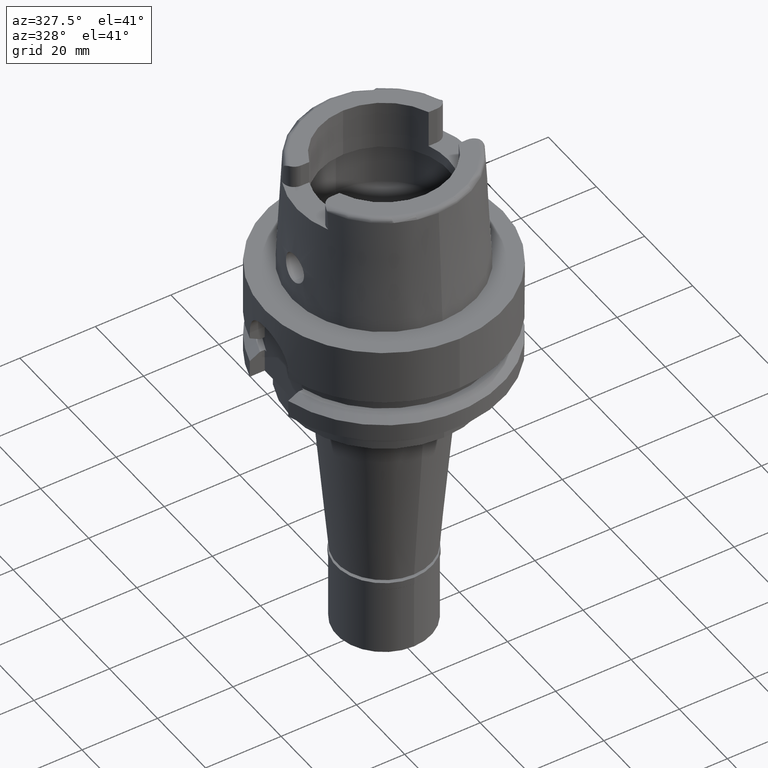
[diagram: clean part render]
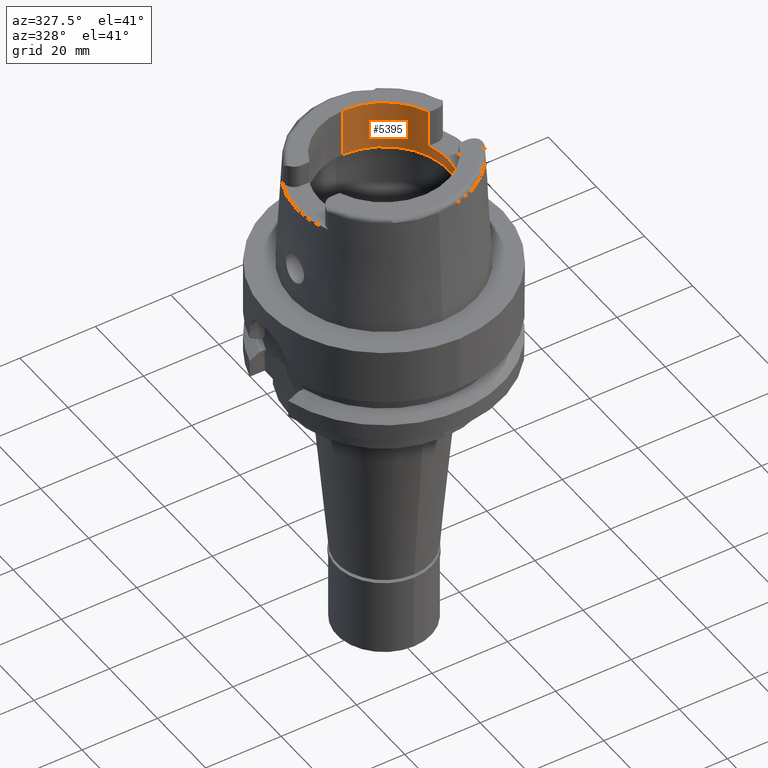
[diagram: same view with one face highlighted and labeled with its STEP entity id]
A machine part, auxiliary view. The second image highlights one B-rep face of the part: STEP entity #5395.
In plain terms, the highlighted cylindrical surface (partial cylindrical patch) has radius 17 mm, axis along (0, 0, 1).
Its self-contained STEP definition (entity closure, byte-faithful):
#2 = AXIS2_PLACEMENT_3D ( 'NONE', #2868, #3721, #4546 ) ;
#54 = DIRECTION ( 'NONE',  ( 0.0000000000000000000, -7.376457760500000442E-14, 1.000000000000000000 ) ) ;
#106 = CIRCLE ( 'NONE', #3207, 17.00000000000000000 ) ;
#108 = CARTESIAN_POINT ( 'NONE',  ( 15.80149043602999903, 6.270000000000000462, 22.00000000000000000 ) ) ;
#293 = ORIENTED_EDGE ( 'NONE', *, *, #378, .F. ) ;
#354 = AXIS2_PLACEMENT_3D ( 'NONE', #949, #501, #3861 ) ;
#378 = EDGE_CURVE ( 'NONE', #1582, #2493, #1538, .T. ) ;
#467 = CARTESIAN_POINT ( 'NONE',  ( 0.0000000000000000000, -17.00000000000000000, 32.00000000000000000 ) ) ;
#501 = DIRECTION ( 'NONE',  ( 0.0000000000000000000, 0.0000000000000000000, 1.000000000000000000 ) ) ;
#558 = LINE ( 'NONE', #5273, #2327 ) ;
#592 = DIRECTION ( 'NONE',  ( 0.0000000000000000000, 0.0000000000000000000, 1.000000000000000000 ) ) ;
#692 = DIRECTION ( 'NONE',  ( 0.0000000000000000000, -1.000000000000000000, 0.0000000000000000000 ) ) ;
#733 = VERTEX_POINT ( 'NONE', #467 ) ;
#781 = ORIENTED_EDGE ( 'NONE', *, *, #5225, .T. ) ;
#813 = EDGE_LOOP ( 'NONE', ( #3219, #4706, #4939, #781, #3858, #4849, #293, #980 ) ) ;
#879 = EDGE_CURVE ( 'NONE', #733, #2493, #106, .T. ) ;
#949 = CARTESIAN_POINT ( 'NONE',  ( 0.0000000000000000000, 0.0000000000000000000, 22.00000000000000000 ) ) ;
#980 = ORIENTED_EDGE ( 'NONE', *, *, #4949, .T. ) ;
#1349 = DIRECTION ( 'NONE',  ( 0.0000000000000000000, 1.000000000000000000, 0.0000000000000000000 ) ) ;
#1479 = DIRECTION ( 'NONE',  ( 0.0000000000000000000, 7.376457760500000442E-14, 1.000000000000000000 ) ) ;
#1538 = LINE ( 'NONE', #1845, #5271 ) ;
#1582 = VERTEX_POINT ( 'NONE', #2118 ) ;
#1687 = CARTESIAN_POINT ( 'NONE',  ( 0.0000000000000000000, -17.00000000000000000, 18.99602540378000270 ) ) ;
#1693 = AXIS2_PLACEMENT_3D ( 'NONE', #2619, #592, #1349 ) ;
#1704 = EDGE_CURVE ( 'NONE', #2616, #733, #558, .T. ) ;
#1730 = DIRECTION ( 'NONE',  ( 0.0000000000000000000, 1.000000000000000000, 0.0000000000000000000 ) ) ;
#1845 = CARTESIAN_POINT ( 'NONE',  ( 15.80149043602999903, -6.270000000000000462, 22.00000000000000000 ) ) ;
#1883 = CARTESIAN_POINT ( 'NONE',  ( 0.0000000000000000000, 0.0000000000000000000, 32.00000000000000000 ) ) ;
#1951 = VECTOR ( 'NONE', #4395, 1000.000000000000000 ) ;
#2107 = EDGE_CURVE ( 'NONE', #3889, #4270, #3824, .T. ) ;
#2118 = CARTESIAN_POINT ( 'NONE',  ( 15.80149043602999903, -6.270000000000000462, 22.00000000000000000 ) ) ;
#2228 = VERTEX_POINT ( 'NONE', #5460 ) ;
#2311 = VERTEX_POINT ( 'NONE', #108 ) ;
#2327 = VECTOR ( 'NONE', #1479, 1000.000000000000000 ) ;
#2493 = VERTEX_POINT ( 'NONE', #3187 ) ;
#2616 = VERTEX_POINT ( 'NONE', #1687 ) ;
#2619 = CARTESIAN_POINT ( 'NONE',  ( 0.0000000000000000000, 0.0000000000000000000, 0.0000000000000000000 ) ) ;
#2699 = FACE_OUTER_BOUND ( 'NONE', #813, .T. ) ;
#2714 = LINE ( 'NONE', #4756, #1951 ) ;
#2734 = DIRECTION ( 'NONE',  ( 0.0000000000000000000, 0.0000000000000000000, 1.000000000000000000 ) ) ;
#2753 = CIRCLE ( 'NONE', #354, 17.00000000000000000 ) ;
#2868 = CARTESIAN_POINT ( 'NONE',  ( 0.0000000000000000000, 0.0000000000000000000, 32.00000000000000000 ) ) ;
#3187 = CARTESIAN_POINT ( 'NONE',  ( 15.80149043602999903, -6.270000000000000462, 32.00000000000000000 ) ) ;
#3207 = AXIS2_PLACEMENT_3D ( 'NONE', #1883, #5260, #692 ) ;
#3219 = ORIENTED_EDGE ( 'NONE', *, *, #4379, .F. ) ;
#3336 = CARTESIAN_POINT ( 'NONE',  ( 0.0000000000000000000, 17.00000000000000000, 18.99602540378000270 ) ) ;
#3721 = DIRECTION ( 'NONE',  ( 0.0000000000000000000, 0.0000000000000000000, 1.000000000000000000 ) ) ;
#3824 = LINE ( 'NONE', #3336, #4989 ) ;
#3858 = ORIENTED_EDGE ( 'NONE', *, *, #1704, .T. ) ;
#3861 = DIRECTION ( 'NONE',  ( 0.9294994374136111848, -0.3688235294118045182, 0.0000000000000000000 ) ) ;
#3889 = VERTEX_POINT ( 'NONE', #4893 ) ;
#4257 = CARTESIAN_POINT ( 'NONE',  ( 0.0000000000000000000, 0.0000000000000000000, 18.99602540378000270 ) ) ;
#4270 = VERTEX_POINT ( 'NONE', #4777 ) ;
#4379 = EDGE_CURVE ( 'NONE', #2228, #2311, #2714, .T. ) ;
#4395 = DIRECTION ( 'NONE',  ( 0.0000000000000000000, 0.0000000000000000000, -1.000000000000000000 ) ) ;
#4546 = DIRECTION ( 'NONE',  ( 0.9294994374136111848, 0.3688235294118045182, 0.0000000000000000000 ) ) ;
#4601 = DIRECTION ( 'NONE',  ( 0.0000000000000000000, 0.0000000000000000000, -1.000000000000000000 ) ) ;
#4706 = ORIENTED_EDGE ( 'NONE', *, *, #4903, .T. ) ;
#4756 = CARTESIAN_POINT ( 'NONE',  ( 15.80149043602999903, 6.270000000000000462, 32.00000000000000000 ) ) ;
#4777 = CARTESIAN_POINT ( 'NONE',  ( 0.0000000000000000000, 17.00000000000000000, 32.00000000000000000 ) ) ;
#4778 = CIRCLE ( 'NONE', #2, 17.00000000000000000 ) ;
#4849 = ORIENTED_EDGE ( 'NONE', *, *, #879, .T. ) ;
#4866 = AXIS2_PLACEMENT_3D ( 'NONE', #4257, #4601, #1730 ) ;
#4893 = CARTESIAN_POINT ( 'NONE',  ( 0.0000000000000000000, 17.00000000000000000, 18.99602540378000270 ) ) ;
#4903 = EDGE_CURVE ( 'NONE', #2228, #4270, #4778, .T. ) ;
#4939 = ORIENTED_EDGE ( 'NONE', *, *, #2107, .F. ) ;
#4949 = EDGE_CURVE ( 'NONE', #1582, #2311, #2753, .T. ) ;
#4989 = VECTOR ( 'NONE', #54, 1000.000000000000000 ) ;
#5136 = CYLINDRICAL_SURFACE ( 'NONE', #1693, 17.00000000000000000 ) ;
#5225 = EDGE_CURVE ( 'NONE', #3889, #2616, #5407, .T. ) ;
#5260 = DIRECTION ( 'NONE',  ( 0.0000000000000000000, 0.0000000000000000000, 1.000000000000000000 ) ) ;
#5271 = VECTOR ( 'NONE', #2734, 1000.000000000000000 ) ;
#5273 = CARTESIAN_POINT ( 'NONE',  ( 0.0000000000000000000, -17.00000000000000000, 18.99602540378000270 ) ) ;
#5395 = ADVANCED_FACE ( 'NONE', ( #2699 ), #5136, .F. ) ;
#5407 = CIRCLE ( 'NONE', #4866, 17.00000000000000000 ) ;
#5460 = CARTESIAN_POINT ( 'NONE',  ( 15.80149043602999903, 6.270000000000000462, 32.00000000000000000 ) ) ;